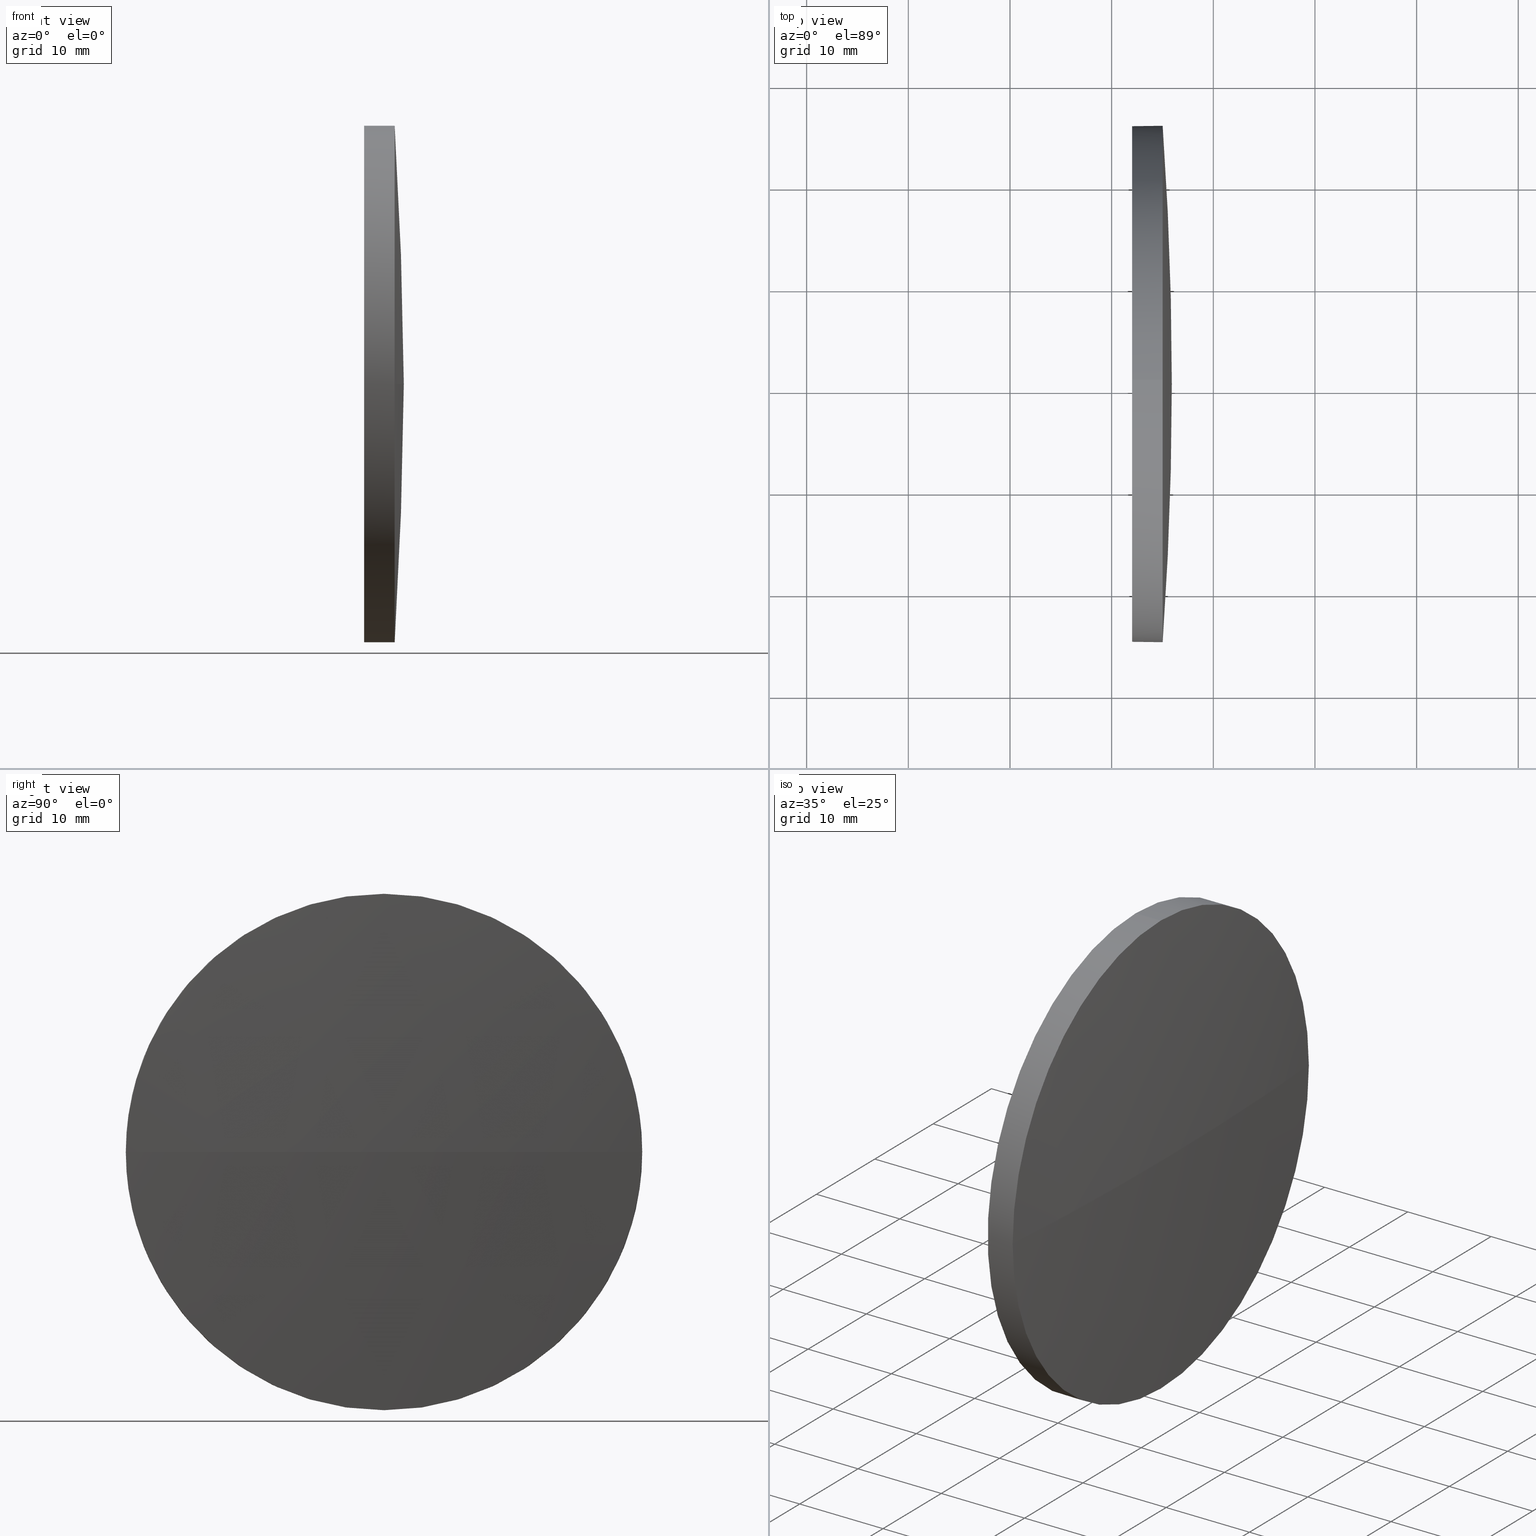
[diagram: canonical four-view strip — front | top / right | iso, engineering-drawing reading convention]
A machine part, canonical four-view strip (front | top / right | iso — engineering-drawing reading convention). The complete STEP part file that produces these views, byte-faithful:
ISO-10303-21;
HEADER;
FILE_DESCRIPTION (( 'STEP AP214' ),
    '1' );
FILE_NAME ('100392.STEP',
    '2019-06-05T02:08:43',
    ( '' ),
    ( '' ),
    'SwSTEP 2.0',
    'SolidWorks 2016',
    '' );
FILE_SCHEMA (( 'AUTOMOTIVE_DESIGN' ));
ENDSEC;

DATA;
#1 = APPLICATION_PROTOCOL_DEFINITION ( 'draft international standard', 'automotive_design', 1998, #115 ) ;
#2 = DIRECTION ( 'NONE',  ( -1.000000000000000000, -0.0000000000000000000, -0.0000000000000000000 ) ) ;
#3 = EDGE_LOOP ( 'NONE', ( #39, #150, #8, #169, #4 ) ) ;
#4 = ORIENTED_EDGE ( 'NONE', *, *, #185, .F. ) ;
#5 = VERTEX_POINT ( 'NONE', #83 ) ;
#6 = AXIS2_PLACEMENT_3D ( 'NONE', #186, #120, #164 ) ;
#7 = CARTESIAN_POINT ( 'NONE',  ( 235.0208200792423800, 130.4671098528243900, 0.0000000000000000000 ) ) ;
#8 = ORIENTED_EDGE ( 'NONE', *, *, #140, .T. ) ;
#9 = CARTESIAN_POINT ( 'NONE',  ( -122.9514021429779800, 130.4671098528241900, 0.0000000000000000000 ) ) ;
#10 = ORIENTED_EDGE ( 'NONE', *, *, #151, .T. ) ;
#11 = DIRECTION ( 'NONE',  ( 0.0000000000000000000, 0.0000000000000000000, 1.000000000000000000 ) ) ;
#12 = FILL_AREA_STYLE_COLOUR ( '', #136 ) ;
#13 = SURFACE_STYLE_FILL_AREA ( #149 ) ;
#14 = DIRECTION ( 'NONE',  ( 1.000000000000000000, 0.0000000000000000000, 0.0000000000000000000 ) ) ;
#15 = SURFACE_SIDE_STYLE ('',( #13 ) ) ;
#16 = ORIENTED_EDGE ( 'NONE', *, *, #69, .F. ) ;
#17 = VERTEX_POINT ( 'NONE', #159 ) ;
#18 = PRESENTATION_STYLE_ASSIGNMENT (( #113 ) ) ;
#19 = AXIS2_PLACEMENT_3D ( 'NONE', #104, #89, #14 ) ;
#20 = ADVANCED_BREP_SHAPE_REPRESENTATION ( '100392', ( #107, #19 ), #21 ) ;
#21 =( GEOMETRIC_REPRESENTATION_CONTEXT ( 3 ) GLOBAL_UNCERTAINTY_ASSIGNED_CONTEXT ( ( #158 ) ) GLOBAL_UNIT_ASSIGNED_CONTEXT ( ( #103, #49, #146 ) ) REPRESENTATION_CONTEXT ( 'NONE', 'WORKASPACE' ) );
#22 = ORIENTED_EDGE ( 'NONE', *, *, #151, .F. ) ;
#23 = CARTESIAN_POINT ( 'NONE',  ( -122.9514021429779800, 130.4671098528241900, 0.0000000000000000000 ) ) ;
#24 = DIRECTION ( 'NONE',  ( 0.0000000000000000000, 0.0000000000000000000, 1.000000000000000000 ) ) ;
#25 = ORIENTED_EDGE ( 'NONE', *, *, #110, .F. ) ;
#26 = PRODUCT_DEFINITION ( 'δ֪', '', #53, #37 ) ;
#27 =( LENGTH_UNIT ( ) NAMED_UNIT ( * ) SI_UNIT ( .MILLI., .METRE. ) );
#28 = PRESENTATION_LAYER_ASSIGNMENT (  '', '', ( #116 ) ) ;
#29 = EDGE_CURVE ( 'NONE', #154, #5, #132, .T. ) ;
#30 = DIRECTION ( 'NONE',  ( 1.000000000000000000, 0.0000000000000000000, 0.0000000000000000000 ) ) ;
#31 = FACE_OUTER_BOUND ( 'NONE', #3, .T. ) ;
#32 = CARTESIAN_POINT ( 'NONE',  ( 232.0208200792423800, 130.4671098528243900, 0.0000000000000000000 ) ) ;
#33 = VERTEX_POINT ( 'NONE', #173 ) ;
#34 = SHAPE_DEFINITION_REPRESENTATION ( #143, #20 ) ;
#35 = CIRCLE ( 'NONE', #81, 25.40000000000000600 ) ;
#36 = VECTOR ( 'NONE', #2, 1000.000000000000000 ) ;
#37 = PRODUCT_DEFINITION_CONTEXT ( 'detailed design', #45, 'design' ) ;
#38 = LINE ( 'NONE', #176, #97 ) ;
#39 = ORIENTED_EDGE ( 'NONE', *, *, #160, .F. ) ;
#40 =( NAMED_UNIT ( * ) PLANE_ANGLE_UNIT ( ) SI_UNIT ( $, .RADIAN. ) );
#41 = CARTESIAN_POINT ( 'NONE',  ( 235.0208200792423800, 130.4671098528243900, 25.40000000000000600 ) ) ;
#42 = DIRECTION ( 'NONE',  ( -0.0000000000000000000, 0.0000000000000000000, 1.000000000000000000 ) ) ;
#43 = AXIS2_PLACEMENT_3D ( 'NONE', #9, #70, #184 ) ;
#44 = SURFACE_SIDE_STYLE ('',( #141 ) ) ;
#45 = APPLICATION_CONTEXT ( 'automotive_design' ) ;
#46 = CARTESIAN_POINT ( 'NONE',  ( 235.0208200792423800, 130.4671098528243900, 0.0000000000000000000 ) ) ;
#47 = PRODUCT_CONTEXT ( 'NONE', #115, 'mechanical' ) ;
#48 = FACE_OUTER_BOUND ( 'NONE', #91, .T. ) ;
#49 =( NAMED_UNIT ( * ) PLANE_ANGLE_UNIT ( ) SI_UNIT ( $, .RADIAN. ) );
#50 =( GEOMETRIC_REPRESENTATION_CONTEXT ( 3 ) GLOBAL_UNCERTAINTY_ASSIGNED_CONTEXT ( ( #180 ) ) GLOBAL_UNIT_ASSIGNED_CONTEXT ( ( #117, #130, #131 ) ) REPRESENTATION_CONTEXT ( 'NONE', 'WORKASPACE' ) );
#51 = ADVANCED_FACE ( 'NONE', ( #48 ), #79, .T. ) ;
#52 = ORIENTED_EDGE ( 'NONE', *, *, #140, .F. ) ;
#53 = PRODUCT_DEFINITION_FORMATION_WITH_SPECIFIED_SOURCE ( '�κ�', '', #57, .NOT_KNOWN. ) ;
#54 = AXIS2_PLACEMENT_3D ( 'NONE', #65, #87, #11 ) ;
#55 = EDGE_LOOP ( 'NONE', ( #61, #94, #16, #52 ) ) ;
#56 = AXIS2_PLACEMENT_3D ( 'NONE', #23, #157, #74 ) ;
#57 = PRODUCT ( '100392', '100392', '', ( #47 ) ) ;
#58 = CYLINDRICAL_SURFACE ( 'NONE', #6, 25.40000000000000600 ) ;
#59 = CARTESIAN_POINT ( 'NONE',  ( 220.3307464569769000, 130.4671098528243900, 0.0000000000000000000 ) ) ;
#60 = EDGE_LOOP ( 'NONE', ( #10, #127 ) ) ;
#61 = ORIENTED_EDGE ( 'NONE', *, *, #64, .F. ) ;
#62 = DIRECTION ( 'NONE',  ( 0.0000000000000000000, 1.000000000000000000, 0.0000000000000000000 ) ) ;
#63 = DIRECTION ( 'NONE',  ( 0.0000000000000000000, 0.0000000000000000000, 1.000000000000000000 ) ) ;
#64 = EDGE_CURVE ( 'NONE', #154, #174, #75, .T. ) ;
#65 = CARTESIAN_POINT ( 'NONE',  ( 235.0208200792423800, 130.4671098528243900, 0.0000000000000000000 ) ) ;
#66 = CARTESIAN_POINT ( 'NONE',  ( 232.0208200792423800, 130.4671098528243900, 0.0000000000000000000 ) ) ;
#67 = AXIS2_PLACEMENT_3D ( 'NONE', #46, #161, #148 ) ;
#68 = VERTEX_POINT ( 'NONE', #41 ) ;
#69 = EDGE_CURVE ( 'NONE', #68, #5, #88, .T. ) ;
#70 = DIRECTION ( 'NONE',  ( 0.0000000000000000000, 1.224646799147353200E-016, -1.000000000000000000 ) ) ;
#71 = DIRECTION ( 'NONE',  ( -1.000000000000000000, -0.0000000000000000000, -0.0000000000000000000 ) ) ;
#72 = AXIS2_PLACEMENT_3D ( 'NONE', #66, #177, #63 ) ;
#73 = AXIS2_PLACEMENT_3D ( 'NONE', #7, #172, #24 ) ;
#74 = DIRECTION ( 'NONE',  ( 0.0000000000000000000, 1.000000000000000000, 0.0000000000000000000 ) ) ;
#75 = CIRCLE ( 'NONE', #43, 358.8722222222203900 ) ;
#76 = DIRECTION ( 'NONE',  ( -1.000000000000000000, -0.0000000000000000000, -0.0000000000000000000 ) ) ;
#77 = DIRECTION ( 'NONE',  ( 0.0000000000000000000, 0.0000000000000000000, 1.000000000000000000 ) ) ;
#78 = AXIS2_PLACEMENT_3D ( 'NONE', #59, #71, #99 ) ;
#79 = SPHERICAL_SURFACE ( 'NONE', #56, 358.8722222222203900 ) ;
#80 = MECHANICAL_DESIGN_GEOMETRIC_PRESENTATION_REPRESENTATION (  '', ( #116 ), #50 ) ;
#81 = AXIS2_PLACEMENT_3D ( 'NONE', #125, #156, #98 ) ;
#82 = DIRECTION ( 'NONE',  ( -0.0000000000000000000, 0.0000000000000000000, -1.000000000000000000 ) ) ;
#83 = CARTESIAN_POINT ( 'NONE',  ( 235.0208200792423800, 155.8671098528243700, 0.0000000000000000000 ) ) ;
#84 = DIRECTION ( 'NONE',  ( -1.000000000000000000, -0.0000000000000000000, -0.0000000000000000000 ) ) ;
#85 = AXIS2_PLACEMENT_3D ( 'NONE', #145, #82, #62 ) ;
#86 = CARTESIAN_POINT ( 'NONE',  ( 235.0208200792423800, 130.4671098528243900, -25.40000000000000600 ) ) ;
#87 = DIRECTION ( 'NONE',  ( -1.000000000000000000, -0.0000000000000000000, -0.0000000000000000000 ) ) ;
#88 = CIRCLE ( 'NONE', #73, 25.40000000000000600 ) ;
#89 = DIRECTION ( 'NONE',  ( 0.0000000000000000000, 0.0000000000000000000, 1.000000000000000000 ) ) ;
#90 = PRODUCT_RELATED_PRODUCT_CATEGORY ( 'part', '', ( #57 ) ) ;
#91 = EDGE_LOOP ( 'NONE', ( #152, #144, #175, #179 ) ) ;
#92 = CIRCLE ( 'NONE', #72, 25.40000000000000600 ) ;
#93 = CYLINDRICAL_SURFACE ( 'NONE', #78, 25.40000000000000600 ) ;
#94 = ORIENTED_EDGE ( 'NONE', *, *, #29, .T. ) ;
#95 =( GEOMETRIC_REPRESENTATION_CONTEXT ( 3 ) GLOBAL_UNCERTAINTY_ASSIGNED_CONTEXT ( ( #138 ) ) GLOBAL_UNIT_ASSIGNED_CONTEXT ( ( #27, #40, #126 ) ) REPRESENTATION_CONTEXT ( 'NONE', 'WORKASPACE' ) );
#96 = EDGE_CURVE ( 'NONE', #5, #165, #35, .T. ) ;
#97 = VECTOR ( 'NONE', #84, 1000.000000000000000 ) ;
#98 = DIRECTION ( 'NONE',  ( 0.0000000000000000000, 0.0000000000000000000, 1.000000000000000000 ) ) ;
#99 = DIRECTION ( 'NONE',  ( 0.0000000000000000000, 0.0000000000000000000, 1.000000000000000000 ) ) ;
#100 = STYLED_ITEM ( 'NONE', ( #18 ), #107 ) ;
#101 = PLANE ( 'NONE',  #182 ) ;
#102 = FACE_OUTER_BOUND ( 'NONE', #153, .T. ) ;
#103 =( LENGTH_UNIT ( ) NAMED_UNIT ( * ) SI_UNIT ( .MILLI., .METRE. ) );
#104 = CARTESIAN_POINT ( 'NONE',  ( 0.0000000000000000000, 0.0000000000000000000, 0.0000000000000000000 ) ) ;
#105 = DIRECTION ( 'NONE',  ( 0.0000000000000000000, 0.0000000000000000000, -1.000000000000000000 ) ) ;
#106 = CARTESIAN_POINT ( 'NONE',  ( 235.9208200792423900, 130.4671098528242200, 0.0000000000000000000 ) ) ;
#107 = MANIFOLD_SOLID_BREP ( '��ת1', #114 ) ;
#108 = ORIENTED_EDGE ( 'NONE', *, *, #96, .T. ) ;
#109 = ADVANCED_FACE ( 'NONE', ( #31 ), #93, .T. ) ;
#110 = EDGE_CURVE ( 'NONE', #68, #17, #38, .T. ) ;
#111 = CARTESIAN_POINT ( 'NONE',  ( -122.9514021429779800, 130.4671098528241900, 0.0000000000000000000 ) ) ;
#112 = FILL_AREA_STYLE ('',( #128 ) ) ;
#113 = SURFACE_STYLE_USAGE ( .BOTH. , #44 ) ;
#114 = CLOSED_SHELL ( 'NONE', ( #181, #51, #121, #109, #166 ) ) ;
#115 = APPLICATION_CONTEXT ( 'automotive_design' ) ;
#116 = STYLED_ITEM ( 'NONE', ( #171 ), #20 ) ;
#117 =( LENGTH_UNIT ( ) NAMED_UNIT ( * ) SI_UNIT ( .MILLI., .METRE. ) );
#118 = APPLICATION_PROTOCOL_DEFINITION ( 'draft international standard', 'automotive_design', 1998, #45 ) ;
#119 = LINE ( 'NONE', #162, #36 ) ;
#120 = DIRECTION ( 'NONE',  ( -1.000000000000000000, -0.0000000000000000000, -0.0000000000000000000 ) ) ;
#121 = ADVANCED_FACE ( 'NONE', ( #183 ), #139, .T. ) ;
#122 = CIRCLE ( 'NONE', #168, 25.40000000000000600 ) ;
#123 = ORIENTED_EDGE ( 'NONE', *, *, #160, .T. ) ;
#124 = EDGE_CURVE ( 'NONE', #165, #174, #163, .T. ) ;
#125 = CARTESIAN_POINT ( 'NONE',  ( 235.0208200792423800, 130.4671098528243900, 0.0000000000000000000 ) ) ;
#126 =( NAMED_UNIT ( * ) SI_UNIT ( $, .STERADIAN. ) SOLID_ANGLE_UNIT ( ) );
#127 = ORIENTED_EDGE ( 'NONE', *, *, #185, .T. ) ;
#128 = FILL_AREA_STYLE_COLOUR ( '', #134 ) ;
#129 = CARTESIAN_POINT ( 'NONE',  ( 232.0208200792423800, 130.4671098528243900, 0.0000000000000000000 ) ) ;
#130 =( NAMED_UNIT ( * ) PLANE_ANGLE_UNIT ( ) SI_UNIT ( $, .RADIAN. ) );
#131 =( NAMED_UNIT ( * ) SI_UNIT ( $, .STERADIAN. ) SOLID_ANGLE_UNIT ( ) );
#132 = CIRCLE ( 'NONE', #137, 358.8722222222203900 ) ;
#133 = CARTESIAN_POINT ( 'NONE',  ( 235.0208200792423800, 105.0671098528242300, -3.110602869834272100E-015 ) ) ;
#134 = COLOUR_RGB ( '',1.000000000000000000, 1.000000000000000000, 1.000000000000000000 ) ;
#135 = ORIENTED_EDGE ( 'NONE', *, *, #69, .T. ) ;
#136 = COLOUR_RGB ( '',1.000000000000000000, 1.000000000000000000, 1.000000000000000000 ) ;
#137 = AXIS2_PLACEMENT_3D ( 'NONE', #111, #42, #142 ) ;
#138 = UNCERTAINTY_MEASURE_WITH_UNIT (LENGTH_MEASURE( 1.000000000000000100E-005 ), #27, 'distance_accuracy_value', 'NONE');
#139 = SPHERICAL_SURFACE ( 'NONE', #85, 358.8722222222203900 ) ;
#140 = EDGE_CURVE ( 'NONE', #174, #68, #167, .T. ) ;
#141 = SURFACE_STYLE_FILL_AREA ( #112 ) ;
#142 = DIRECTION ( 'NONE',  ( 1.000000000000000000, 0.0000000000000000000, 0.0000000000000000000 ) ) ;
#143 = PRODUCT_DEFINITION_SHAPE ( 'NONE', 'NONE',  #26 ) ;
#144 = ORIENTED_EDGE ( 'NONE', *, *, #64, .T. ) ;
#145 = CARTESIAN_POINT ( 'NONE',  ( -122.9514021429779800, 130.4671098528241900, 0.0000000000000000000 ) ) ;
#146 =( NAMED_UNIT ( * ) SI_UNIT ( $, .STERADIAN. ) SOLID_ANGLE_UNIT ( ) );
#147 = FACE_OUTER_BOUND ( 'NONE', #60, .T. ) ;
#148 = DIRECTION ( 'NONE',  ( 0.0000000000000000000, 0.0000000000000000000, 1.000000000000000000 ) ) ;
#149 = FILL_AREA_STYLE ('',( #12 ) ) ;
#150 = ORIENTED_EDGE ( 'NONE', *, *, #124, .T. ) ;
#151 = EDGE_CURVE ( 'NONE', #17, #33, #92, .T. ) ;
#152 = ORIENTED_EDGE ( 'NONE', *, *, #29, .F. ) ;
#153 = EDGE_LOOP ( 'NONE', ( #108, #123, #22, #25, #135 ) ) ;
#154 = VERTEX_POINT ( 'NONE', #106 ) ;
#155 = PRESENTATION_LAYER_ASSIGNMENT (  '', '', ( #100 ) ) ;
#156 = DIRECTION ( 'NONE',  ( -1.000000000000000000, -0.0000000000000000000, -0.0000000000000000000 ) ) ;
#157 = DIRECTION ( 'NONE',  ( -0.0000000000000000000, 0.0000000000000000000, -1.000000000000000000 ) ) ;
#158 = UNCERTAINTY_MEASURE_WITH_UNIT (LENGTH_MEASURE( 1.000000000000000100E-005 ), #103, 'distance_accuracy_value', 'NONE');
#159 = CARTESIAN_POINT ( 'NONE',  ( 232.0208200792423800, 130.4671098528243900, 25.40000000000000600 ) ) ;
#160 = EDGE_CURVE ( 'NONE', #165, #33, #119, .T. ) ;
#161 = DIRECTION ( 'NONE',  ( -1.000000000000000000, -0.0000000000000000000, -0.0000000000000000000 ) ) ;
#162 = CARTESIAN_POINT ( 'NONE',  ( 220.3307464569769000, 130.4671098528243900, -25.40000000000000600 ) ) ;
#163 = CIRCLE ( 'NONE', #54, 25.40000000000000600 ) ;
#164 = DIRECTION ( 'NONE',  ( 0.0000000000000000000, 0.0000000000000000000, 1.000000000000000000 ) ) ;
#165 = VERTEX_POINT ( 'NONE', #86 ) ;
#166 = ADVANCED_FACE ( 'NONE', ( #147 ), #101, .F. ) ;
#167 = CIRCLE ( 'NONE', #67, 25.40000000000000600 ) ;
#168 = AXIS2_PLACEMENT_3D ( 'NONE', #129, #76, #77 ) ;
#169 = ORIENTED_EDGE ( 'NONE', *, *, #110, .T. ) ;
#170 = MECHANICAL_DESIGN_GEOMETRIC_PRESENTATION_REPRESENTATION (  '', ( #100 ), #95 ) ;
#171 = PRESENTATION_STYLE_ASSIGNMENT (( #178 ) ) ;
#172 = DIRECTION ( 'NONE',  ( -1.000000000000000000, -0.0000000000000000000, -0.0000000000000000000 ) ) ;
#173 = CARTESIAN_POINT ( 'NONE',  ( 232.0208200792423800, 130.4671098528243900, -25.40000000000000600 ) ) ;
#174 = VERTEX_POINT ( 'NONE', #133 ) ;
#175 = ORIENTED_EDGE ( 'NONE', *, *, #124, .F. ) ;
#176 = CARTESIAN_POINT ( 'NONE',  ( 220.3307464569769000, 130.4671098528243900, 25.40000000000000600 ) ) ;
#177 = DIRECTION ( 'NONE',  ( -1.000000000000000000, -0.0000000000000000000, -0.0000000000000000000 ) ) ;
#178 = SURFACE_STYLE_USAGE ( .BOTH. , #15 ) ;
#179 = ORIENTED_EDGE ( 'NONE', *, *, #96, .F. ) ;
#180 = UNCERTAINTY_MEASURE_WITH_UNIT (LENGTH_MEASURE( 1.000000000000000100E-005 ), #117, 'distance_accuracy_value', 'NONE');
#181 = ADVANCED_FACE ( 'NONE', ( #102 ), #58, .T. ) ;
#182 = AXIS2_PLACEMENT_3D ( 'NONE', #32, #30, #105 ) ;
#183 = FACE_OUTER_BOUND ( 'NONE', #55, .T. ) ;
#184 = DIRECTION ( 'NONE',  ( 0.0000000000000000000, 1.000000000000000000, 1.224646799147353000E-016 ) ) ;
#185 = EDGE_CURVE ( 'NONE', #33, #17, #122, .T. ) ;
#186 = CARTESIAN_POINT ( 'NONE',  ( 220.3307464569769000, 130.4671098528243900, 0.0000000000000000000 ) ) ;
ENDSEC;
END-ISO-10303-21;
